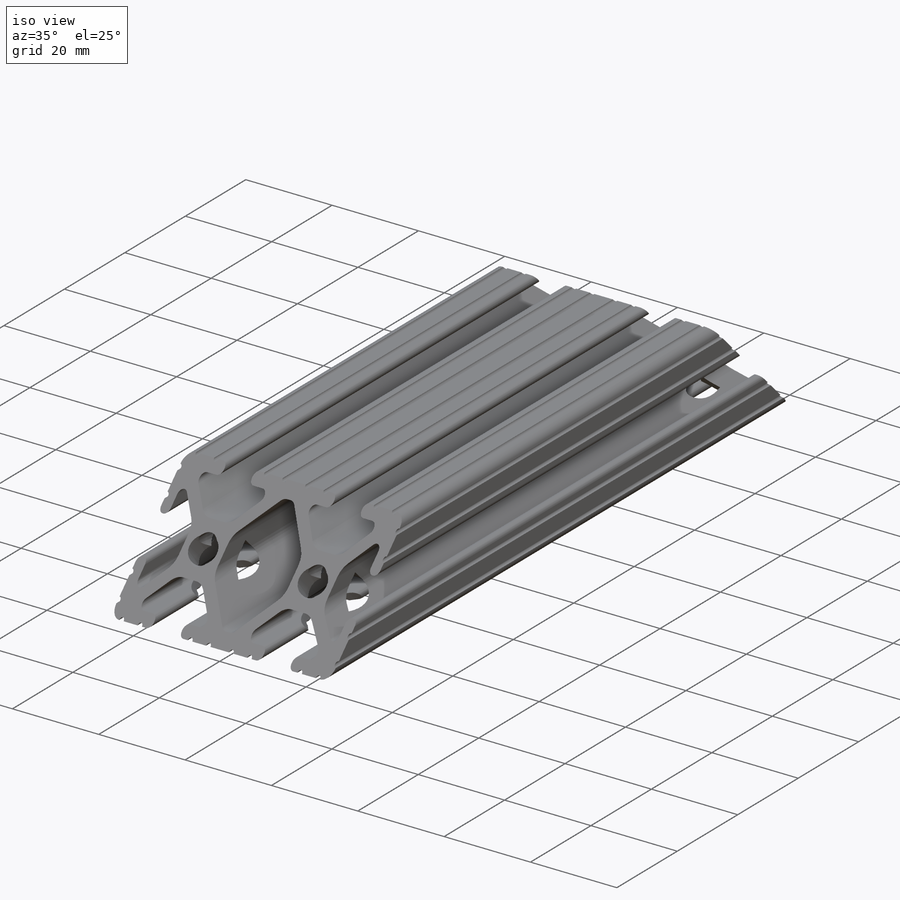
[diagram: iso view]
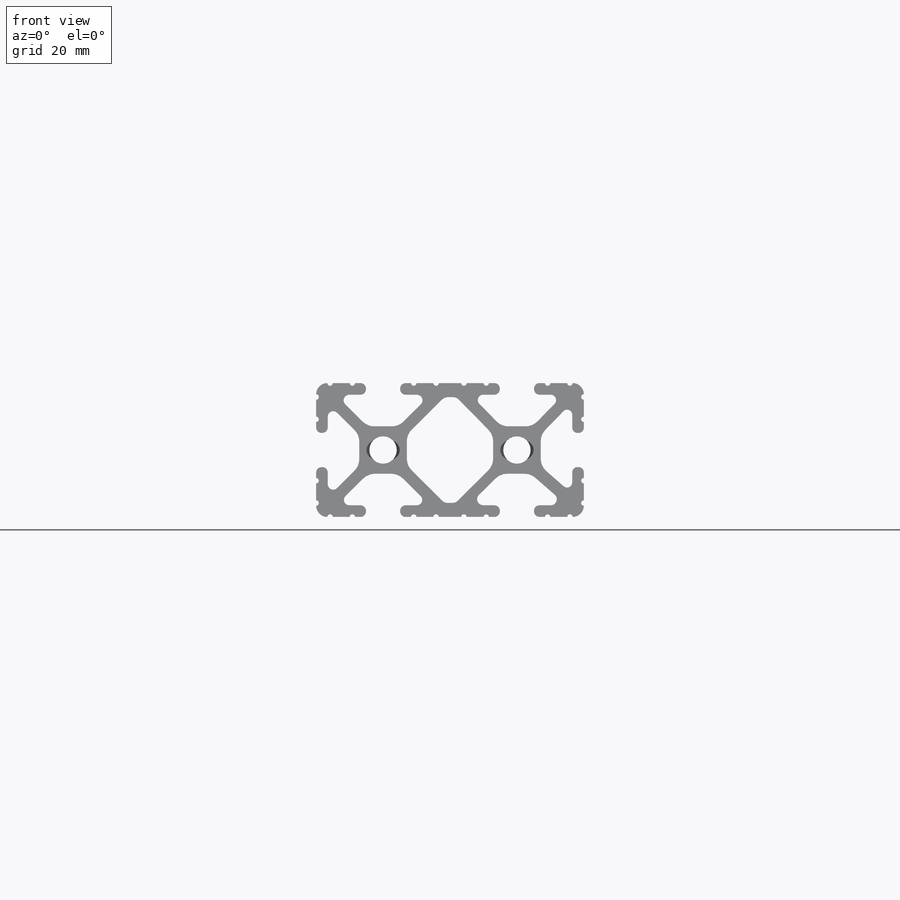
[diagram: front view]
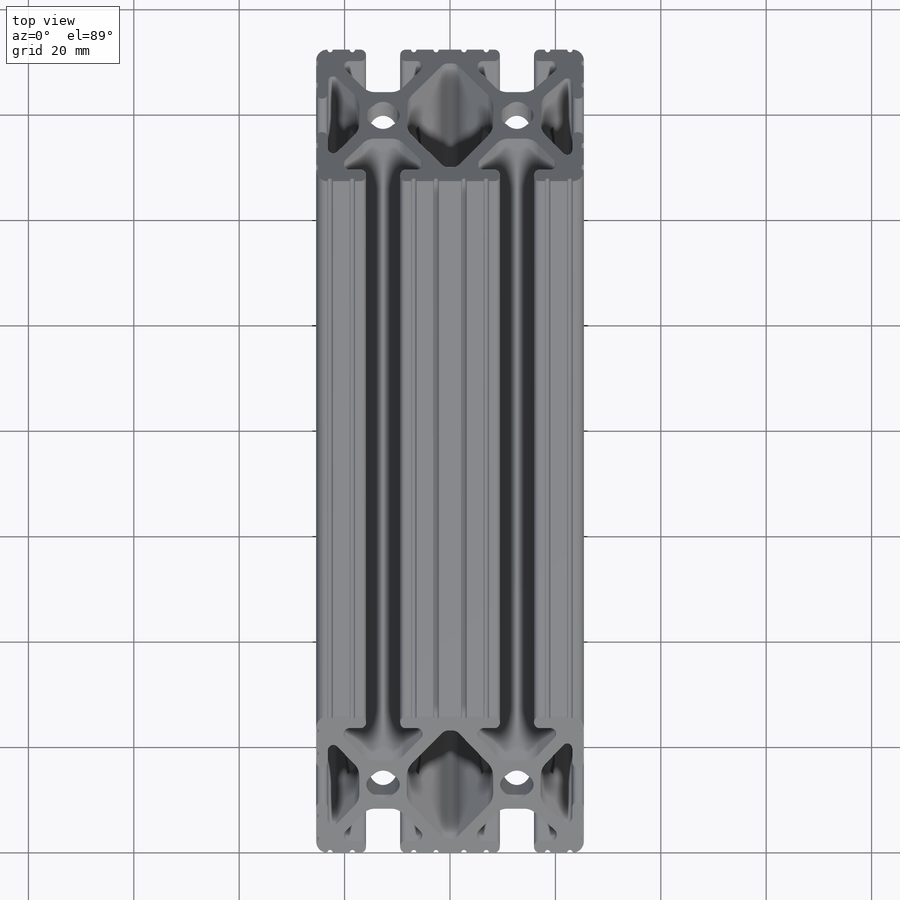
[diagram: top view]
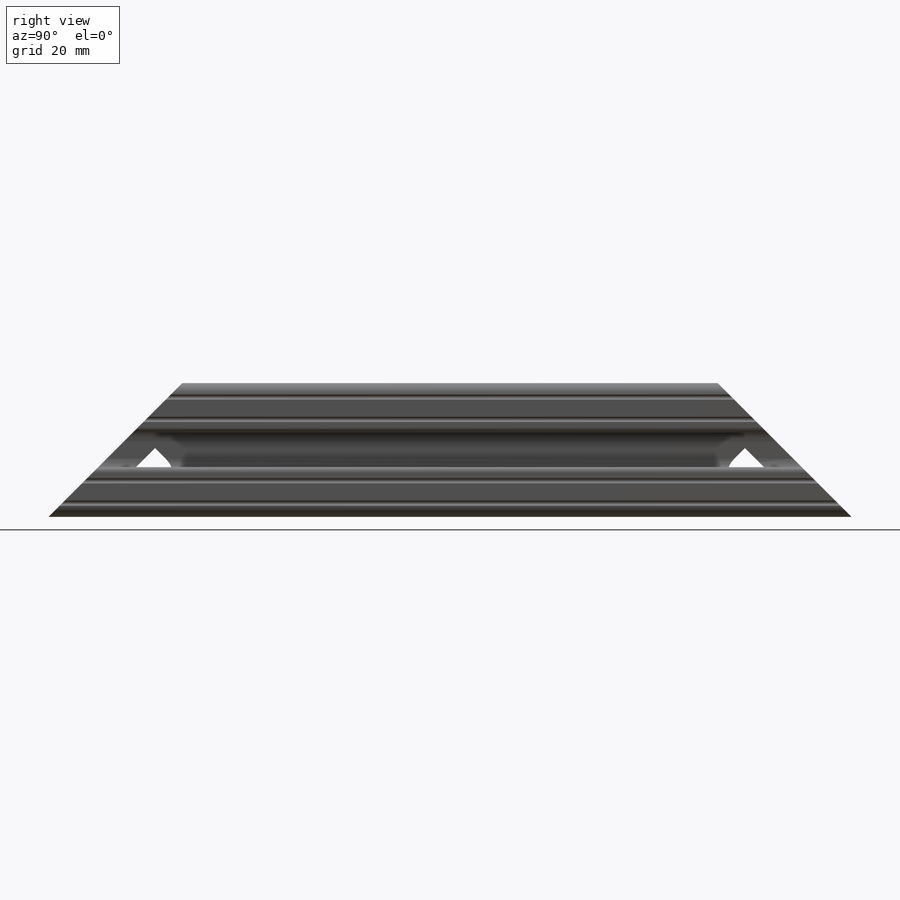
[diagram: right view]
SOLIDWORKS PART (.sldprt)
format: sldprt  version: not decoded by parser v0  size: 1,041,920 bytes
history: native  units: mm
features: sketch x3, cut_extrude x2, material x1, extrude x1, mirror x1 (+14 scaffold rows collapsed)
feature tree (22):
  scaffold x14  (default folders/planes/origin — collapsed)
  material  "6061 Alloy"
  sketch  "Sketch1"  dims[c1.D1=5.207mm c1.D6=~1.04902mm c1.D7=~1.016005mm c1.D14=1.5748mm c1.D16=1.5748mm c1.D15=3.175mm c1.D2=25.4mm c1.D3=50.8mm c1.D4=25.4mm c1.D5=8.2042mm c2.D6=6.477mm c2.D7=14.859mm c2.D8=2.2098mm c2.D9=2.2098mm c2.D10=2.2098mm c2.D11=2.2098mm c2.D12=2.2098mm c2.D13=6.477mm c2.D14=2.667mm c2.D15=2.667mm c2.D16=2.667mm c2.D1=0.0mm]
  extrude  "Extrude1"  Depth=76.2mm LENGTH=76.2mm
  sketch  "Sketch2"  dims[D1=~4.577308mm]
  cut_extrude  "Cut-Extrude1"  [1 undecoded]
  sketch  "Sketch3"  dims[D1=~19.814358mm]
  cut_extrude  "Cut-Extrude2"  Depth=5.08mm
  mirror  "Mirror1"
decode coverage: 5 of 7 modeling features carry decoded parameters
note: ~ marks probable driven/reference dimensions
note: 1 parameter value undecoded
note: suppression state not decoded; provenance and decode notes live in map.json
